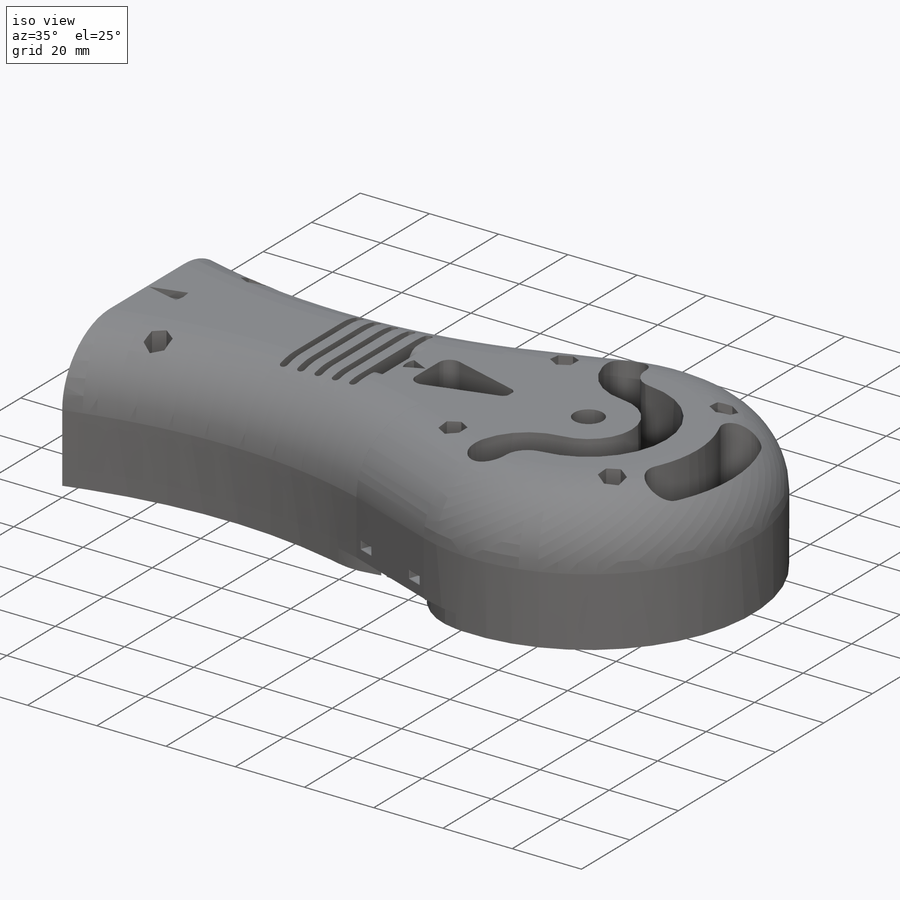
[diagram: iso view]
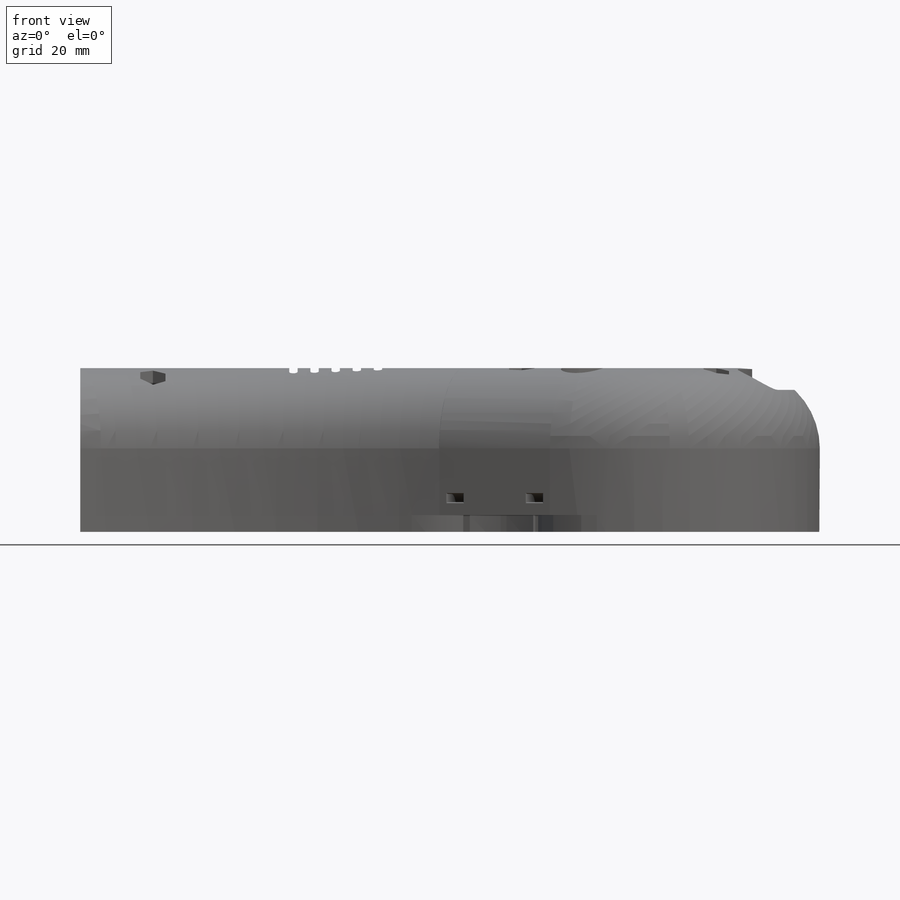
[diagram: front view]
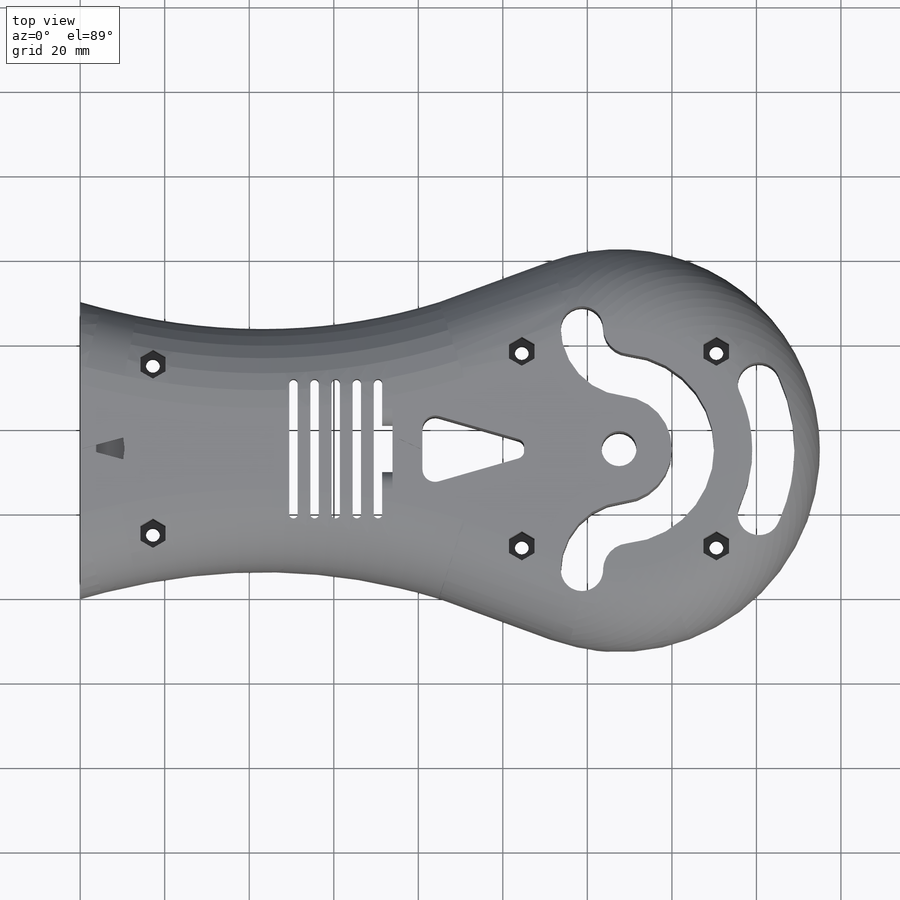
[diagram: top view]
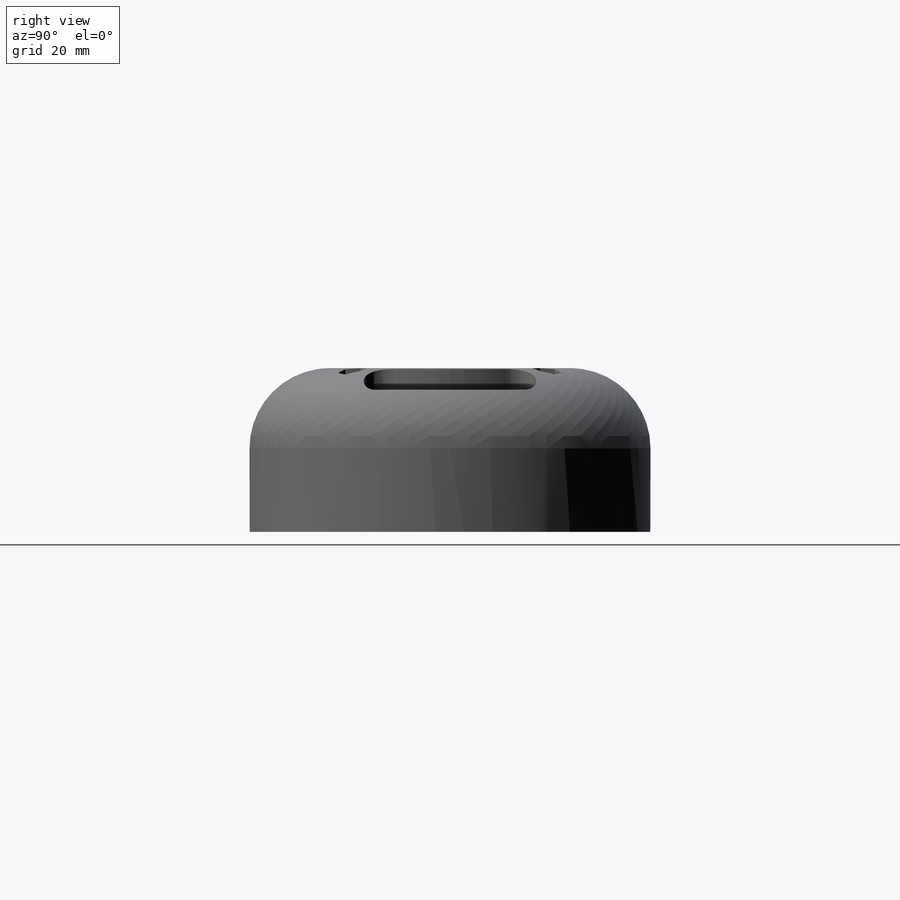
[diagram: right view]
SOLIDWORKS PART (.sldprt)
format: sldprt  version: not decoded by parser v0  size: 1,083,904 bytes
history: native  units: mm
features: sketch x20, cut_extrude x18, fillet x6, plane x3, extrude x2, material x1, chamfer x1 (+9 scaffold rows collapsed)
feature tree (60):
  scaffold x9  (default folders/planes/origin — collapsed)
  material  "Material <sin especificar>"
  plane  "Alzado"
  plane  "Planta"
  plane  "Vista lateral"
  sketch  "Croquis1"  dims[c1.D3=94.0mm c1.D2=8.3mm c1.D1=95.0mm c1.D5=85.0mm c2.D1=85.0mm c2.D2=~41.368044mm c3.D1=170.0mm c3.D2=70.0mm c3.D3=70.0mm c4.D1=70.0mm c4.D2=85.0mm c5.D1=~27.089761mm c5.D2=7.0mm c5.D4=20.0mm c5.D5=20.0mm c6.D2=15.0mm c6.D3=~26.134282mm c6.D4=~26.134282mm c7.D3=~26.134282mm c7.D4=9.0mm c7.D5=9.0mm c7.D1=2.0mm c8.D4=2.0mm]
  extrude  "Saliente-Extruir12"  Depth=38.75mm
  sketch  "Croquis3"  dims[c1.D1=65.1mm c1.D2=3.3mm c1.D3=6.0mm c1.D9=3.3mm c1.D10=6.0mm c2.D3=6.0mm c2.D4=17.2mm c2.D5=15.0mm c2.D6=43.57mm c2.D7=2.0mm c2.D8=2.0mm c2.D10=~4.520537mm]
  cut_extrude  "Cortar-Extruir1"  Depth=40mm
  cut_extrude  "Cortar-Extruir5"  [1 undecoded]
  sketch  "Croquis3<6>"  dims[D1=23.75mm]
  fillet  "Redondeo9"  Radius=19mm
  cut_extrude  "Cortar-Extruir6"  [1 undecoded]
  sketch  "Croquis3<7>"  dims[D1=40.0mm]
  cut_extrude  "Cortar-Extruir7"  [1 undecoded]
  sketch  "Croquis3<8>"  dims[D1=23.75mm]
  sketch  "Croquis5"  dims[c1.D1=86.4mm c1.D2=37.0mm c1.D3=37.0mm c2.D2=13.0mm c2.D4=37.0mm c3.D2=37.0mm c3.D1=86.4mm c4.D2=78.4mm c4.D3=22.15mm c4.D4=44.3mm c4.D5=35.5mm c4.D1=0.0mm]
  cut_extrude  "Cortar-Extruir9"  Depth=22.15mm
  sketch  "Croquis6"  dims[D1=24.0mm]
  cut_extrude  "Cortar-Extruir12"  Depth=30.9mm
  sketch  "Croquis7"  dims[D1=8.3mm]
  cut_extrude  "Cortar-Extruir13"  Depth=30.9mm
  sketch  "Croquis8"  dims[D1=22.0mm]
  cut_extrude  "Cortar-Extruir14"  Depth=7mm
  sketch  "Croquis9"  dims[D4=3.3mm D1=31.0mm D2=15.5mm D3=6.65mm]
  cut_extrude  "Cortar-Extruir15"  Depth=50mm
  sketch  "Croquis10"  dims[D1=6.0mm]
  cut_extrude  "Cortar-Extruir16"  Depth=37.9mm
  sketch  "Croquis11"  dims[D1=33.0mm D2=26.0mm D3=5.65mm D4=4.555mm D5=5.0mm D6=5.0mm D7=5.0mm D8=5.0mm D9=1.0mm D10=1.0mm]
  cut_extrude  "Cortar-Extruir17"  Depth=37.9mm
  sketch  "Croquis12"
  extrude  "Saliente-Extruir13"  Depth=1mm
  sketch  "Croquis13"  dims[D1=5.5mm D2=11.0mm D3=3.0mm]
  cut_extrude  "Cortar-Extruir18"  Depth=20mm
  fillet  "Redondeo11"  Radius=10mm
  fillet  "Redondeo12"  Radius=4mm
  sketch  "Croquis15"  dims[D1=70.0mm D2=3.0mm D3=2.0mm D5=10.0mm D6=45.0mm D7=25.0mm D4=17.0deg D8=73.0mm D9=25.0deg]
  cut_extrude  "Cortar-Extruir19"  Depth=60mm
  sketch  "Croquis16"  dims[c1.D1=0.5mm c1.D2=5.51mm c1.D3=~7.067659mm c2.D3=25.0deg]
  cut_extrude  "Cortar-Extruir20"  Depth=2mm
  sketch  "Croquis17"  dims[c1.D1=0.5mm c1.D2=~14.114702mm c2.D2=~115.308894deg c3.D2=10.0mm c3.D3=~9.040162mm c4.D3=15.0deg]
  cut_extrude  "Cortar-Extruir21"  Depth=2mm
  sketch  "Croquis20"  dims[D1=~15.660413mm D2=30.0mm D3=~29.01465mm D4=~9.244593mm]
  cut_extrude  "Cortar-Extruir27"  Depth=4mm
  sketch  "Croquis21"  dims[D1=4.0mm D2=2.0mm D3=3.0mm D4=4.0mm D5=2.0mm D6=3.0mm]
  fillet  "Redondeo13"  Radius=20mm
  fillet  "Redondeo14"  Radius=20mm
  cut_extrude  "Cortar-Extruir29"  Depth=5mm
  sketch  "Croquis25"  dims[D1=2.0mm D2=2.0mm]
  cut_extrude  "Cortar-Extruir30"  Depth=25mm
  fillet  "Redondeo15"  Radius=3mm
  chamfer  "Chaflán3"  Distance=0.2mm Angle=45deg
decode coverage: 43 of 47 modeling features carry decoded parameters
note: ~ marks probable driven/reference dimensions
note: 3 parameter values undecoded
summary: no parameter record found for 3 features
note: suppression state not decoded; provenance and decode notes live in map.json
